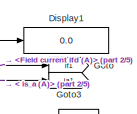
[diagram: root canvas - part 1/5, top center region]
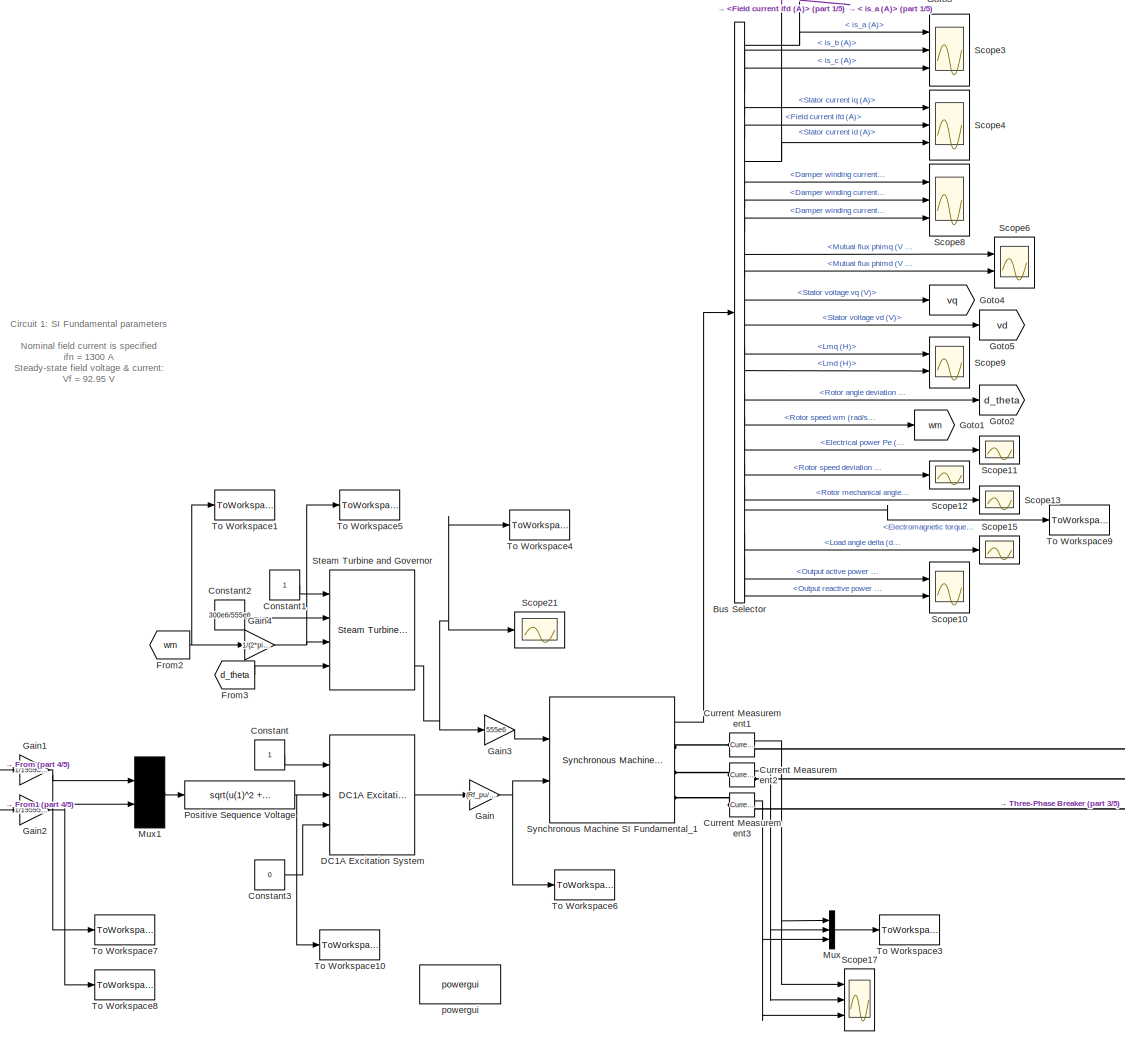
[diagram: root canvas - part 2/5, center side, full height]
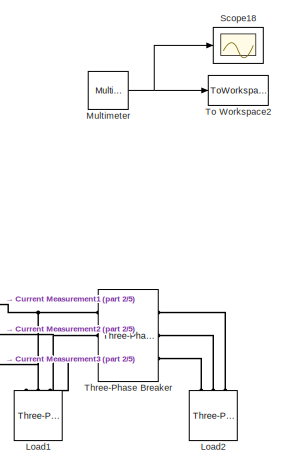
[diagram: root canvas - part 3/5, middle right region]
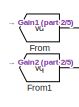
[diagram: root canvas - part 4/5, bottom left region]
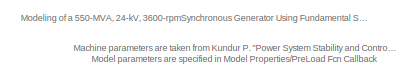
[diagram: root canvas - part 5/5, bottom center region]
MODEL slx_899bc6b0ccce
KIND model
CONFIG AbsTol = auto
CONFIG EnableMultiTasking = on
CONFIG FixedStep = 0.00005
CONFIG MaxStep = 200e-6
CONFIG MinStep = auto
CONFIG PreLoadFcn = % Machine parameters from Kundur Examples 3.1, 3.2,  8.1 (pages 91,102, 345)\n% "Power System Stability and Control"  McGraw-Hill  book, 1994\n% --------------------------------------------------------------------\n% Nominal parameters\nPn=  555e6;   % three-pahse nominal power (VA)\nVn=  24e3;    % nominal LL volatge (Vrms)\nfn=  60;      % nominal frequency (Hz)\nifn= 1300;    % nominal field current (...<+1654ch>
CONFIG RelTol = 1e-4
CONFIG SampleTimeConstraint = Unconstrained
CONFIG Solver = FixedStepAuto
CONFIG SolverName = FixedStepAuto
CONFIG StartTime = 0.0
CONFIG StopTime = 20
BLOCK [BusSelector] Bus Selector
  OutputSignals = Stator current. is_a (A),Stator current. is_b (A),Stator current. is_c (A),dq0 components.Stator current  iq (A),dq0 components.Stator current  id (A),dq0 components.Field current  ifd (A),dq0 components.Damper winding current  ikq1 (A),dq0 components.Damper winding current  ikq2 (A),dq0 components.Damper winding current  ikd (A),dq0 components.Mutual flux  phimq (V s),dq0 components.Mutual flux  ...<+472ch>
  Ports = [1, 24]
BLOCK [Constant] Constant
BLOCK [Constant] Constant1
BLOCK [Constant] Constant2
  Value = 300e6/555e6
BLOCK [Constant] Constant3
  Value = 0
BLOCK [Reference] Current Measurement1  REF=powerlib/Measurements/Current Measurement
  Ports = [0, 1, 0, 0, 0, 1, 1]
  SourceBlock = powerlib/Measurements/Current Measurement
  SourceType = Current Measurement
  UserDataPersistent = on
BLOCK [Reference] Current Measurement2  REF=powerlib/Measurements/Current Measurement
  Ports = [0, 1, 0, 0, 0, 1, 1]
  SourceBlock = powerlib/Measurements/Current Measurement
  SourceType = Current Measurement
  UserDataPersistent = on
BLOCK [Reference] Current Measurement3  REF=powerlib/Measurements/Current Measurement
  Ports = [0, 1, 0, 0, 0, 1, 1]
  SourceBlock = powerlib/Measurements/Current Measurement
  SourceType = Current Measurement
  UserDataPersistent = on
BLOCK [Reference] DC1A Excitation System  REF=sps_avr/DC1A
Excitation System
  Ports = [3, 1]
  SourceBlock = sps_avr/DC1A\nExcitation System
  SourceType = DC1A Excitation System
BLOCK [Display] Display1
  Decimation = 1
  Ports = [1]
BLOCK [From] From
  GotoTag = vd
BLOCK [From] From1
  GotoTag = vq
BLOCK [From] From2
  GotoTag = wm
BLOCK [From] From3
  GotoTag = d_theta
BLOCK [Gain] Gain
  Gain = (Rf_pu/Lmd_pu)*257198.07031934269
  OutDataTypeStr = Inherit: Inherit via internal rule
  ParamDataTypeStr = Inherit: Inherit via internal rule
  SaturateOnIntegerOverflow = off
BLOCK [Gain] Gain1
  Gain = 1/19595.917942265427
  OutDataTypeStr = Inherit: Inherit via internal rule
  ParamDataTypeStr = Inherit: Inherit via internal rule
  SaturateOnIntegerOverflow = off
BLOCK [Gain] Gain2
  Gain = 1/19595.917942265427
  OutDataTypeStr = Inherit: Inherit via internal rule
  ParamDataTypeStr = Inherit: Inherit via internal rule
  SaturateOnIntegerOverflow = off
BLOCK [Gain] Gain3
  Gain = 555e6
  OutDataTypeStr = Inherit: Inherit via internal rule
  ParamDataTypeStr = Inherit: Inherit via internal rule
  SaturateOnIntegerOverflow = off
BLOCK [Gain] Gain4
  Gain = 1/(2*pi*60)
  OutDataTypeStr = Inherit: Inherit via internal rule
  ParamDataTypeStr = Inherit: Inherit via internal rule
  SaturateOnIntegerOverflow = off
BLOCK [Goto] Goto
  GotoTag = If1
  TagVisibility = global
BLOCK [Goto] Goto1
  GotoTag = wm
BLOCK [Goto] Goto2
  GotoTag = d_theta
BLOCK [Goto] Goto3
  GotoTag = ia1
  TagVisibility = global
BLOCK [Goto] Goto4
  GotoTag = vq
BLOCK [Goto] Goto5
  GotoTag = vd
BLOCK [Reference] Load1  REF=powerlib/Elements/Three-Phase
Series RLC Load
  AttributesFormatString = \n
  Ports = [0, 0, 0, 0, 0, 3]
  SourceBlock = powerlib/Elements/Three-Phase\nSeries RLC Load
  SourceType = Three-Phase Series RLC Load
BLOCK [Reference] Load2  REF=powerlib/Elements/Three-Phase
Series RLC Load
  AttributesFormatString = \n
  Ports = [0, 0, 0, 0, 0, 3]
  SourceBlock = powerlib/Elements/Three-Phase\nSeries RLC Load
  SourceType = Three-Phase Series RLC Load
BLOCK [Reference] Multimeter  REF=powerlib/Measurements/Multimeter
  Ports = [0, 1]
  SourceBlock = powerlib/Measurements/Multimeter
  SourceType = MultimeterPSB
BLOCK [Mux] Mux
  DisplayOption = bar
  Inputs = 3
  Ports = [3, 1]
BLOCK [Mux] Mux1
  Inputs = 2
  Ports = [2, 1]
BLOCK [Fcn] Positive Sequence Voltage
  Expr = sqrt(u(1)^2 + u(2)^2)
BLOCK [Scope] Scope10
  NumInputPorts = 2
  Ports = [2]
  ScopeSpecificationString = Simulink.scopes.TimeScopeBlockCfg('CurrentConfiguration', extmgr.ConfigurationSet(extmgr.Configuration('Core','General UI',true),extmgr.Configuration('Core','Source UI',true),extmgr.Configuration('Sources','WiredSimulink',true,'DataLoggingVariableName','ScopeData8'),extmgr.Configuration('Visuals','Time Domain',true,'SerializedDisplays',{struct('MinYLimReal','-938864446.74953','MaxYLimReal','845534...<+2126ch>
BLOCK [Scope] Scope11
  NumInputPorts = 1
  Ports = [1]
  ScopeSpecificationString = Simulink.scopes.TimeScopeBlockCfg('CurrentConfiguration', extmgr.ConfigurationSet(extmgr.Configuration('Core','General UI',true),extmgr.Configuration('Core','Source UI',true),extmgr.Configuration('Sources','WiredSimulink',true,'DataLoggingVariableName','ScopeData9'),extmgr.Configuration('Visuals','Time Domain',true,'SerializedDisplays',{struct('MinYLimReal','554795.30383','MaxYLimReal','555665.063...<+2070ch>
BLOCK [Scope] Scope12
  NumInputPorts = 1
  Ports = [1]
  ScopeSpecificationString = Simulink.scopes.TimeScopeBlockCfg('CurrentConfiguration', extmgr.ConfigurationSet(extmgr.Configuration('Core','General UI',true),extmgr.Configuration('Core','Source UI',true),extmgr.Configuration('Sources','WiredSimulink',true,'DataLoggingVariableName','ScopeData10'),extmgr.Configuration('Visuals','Time Domain',true,'SerializedDisplays',{struct('MinYLimReal','-0.000000002','MaxYLimReal','0.0000000...<+2074ch>
BLOCK [Scope] Scope13
  NumInputPorts = 1
  Ports = [1]
  ScopeSpecificationString = Simulink.scopes.TimeScopeBlockCfg('CurrentConfiguration', extmgr.ConfigurationSet(extmgr.Configuration('Core','General UI',true),extmgr.Configuration('Core','Source UI',true),extmgr.Configuration('Sources','WiredSimulink',true,'DataLoggingVariableName','ScopeData11'),extmgr.Configuration('Visuals','Time Domain',true,'SerializedDisplays',{struct('MinYLimReal','-113.91898','MaxYLimReal','-47.70201',...<+2113ch>
BLOCK [Scope] Scope15
  NumInputPorts = 1
  Ports = [1]
  ScopeSpecificationString = Simulink.scopes.TimeScopeBlockCfg('CurrentConfiguration', extmgr.ConfigurationSet(extmgr.Configuration('Core','General UI',true),extmgr.Configuration('Core','Source UI',true),extmgr.Configuration('Sources','WiredSimulink',true,'DataLoggingVariableName','ScopeData13'),extmgr.Configuration('Visuals','Time Domain',true,'SerializedDisplays',{struct('MinYLimReal','-190.61532','MaxYLimReal','214.69266',...<+2060ch>
BLOCK [Scope] Scope17
  NumInputPorts = 3
  Ports = [3]
  ScopeSpecificationString = Simulink.scopes.TimeScopeBlockCfg('CurrentConfiguration', extmgr.ConfigurationSet(extmgr.Configuration('Core','General UI',true),extmgr.Configuration('Core','Source UI',true),extmgr.Configuration('Sources','WiredSimulink',true,'DataLoggingSaveFormat','StructureWithTime','DataLoggingDecimation','1','DataLoggingDecimateData',true,'DataLoggingVariableName','ScopeData2'),extmgr.Configuration('Visuals'...<+2027ch>
BLOCK [Scope] Scope18
  NumInputPorts = 1
  Ports = [1]
  ScopeSpecificationString = Simulink.scopes.TimeScopeBlockCfg('CurrentConfiguration', extmgr.ConfigurationSet(extmgr.Configuration('Core','General UI',true),extmgr.Configuration('Core','Source UI',true),extmgr.Configuration('Sources','WiredSimulink',true,'DataLoggingVariableName','ScopeData1'),extmgr.Configuration('Visuals','Time Domain',true,'SerializedDisplays',{struct('MinYLimReal','-24496.13978','MaxYLimReal','24496.1398...<+1459ch>
BLOCK [Scope] Scope21
  NumInputPorts = 1
  Ports = [1]
  ScopeSpecificationString = Simulink.scopes.TimeScopeBlockCfg('CurrentConfiguration', extmgr.ConfigurationSet(extmgr.Configuration('Core','General UI',true),extmgr.Configuration('Core','Source UI',true),extmgr.Configuration('Sources','WiredSimulink',true,'DataLoggingVariableName','ScopeData1'),extmgr.Configuration('Visuals','Time Domain',true,'SerializedDisplays',{struct('MinYLimReal','0.00082','MaxYLimReal','0.00215','YLabe...<+1385ch>
BLOCK [Scope] Scope3
  NumInputPorts = 3
  Ports = [3]
  ScopeSpecificationString = Simulink.scopes.TimeScopeBlockCfg('CurrentConfiguration', extmgr.ConfigurationSet(extmgr.Configuration('Core','General UI',true),extmgr.Configuration('Core','Source UI',true),extmgr.Configuration('Sources','WiredSimulink',true,'DataLoggingVariableName','ScopeData1'),extmgr.Configuration('Visuals','Time Domain',true,'SerializedDisplays',{struct('MinYLimReal','16.30961','MaxYLimReal','16.37906','YLa...<+1475ch>
BLOCK [Scope] Scope4
  NumInputPorts = 3
  Ports = [3]
  ScopeSpecificationString = Simulink.scopes.TimeScopeBlockCfg('CurrentConfiguration', extmgr.ConfigurationSet(extmgr.Configuration('Core','General UI',true),extmgr.Configuration('Core','Source UI',true),extmgr.Configuration('Sources','WiredSimulink',true,'DataLoggingVariableName','ScopeData2'),extmgr.Configuration('Visuals','Time Domain',true,'SerializedDisplays',{struct('MinYLimReal','-104503.54243','MaxYLimReal','107336.88...<+2852ch>
BLOCK [Scope] Scope6
  NumInputPorts = 2
  Ports = [2]
  ScopeSpecificationString = Simulink.scopes.TimeScopeBlockCfg('CurrentConfiguration', extmgr.ConfigurationSet(extmgr.Configuration('Core','General UI',true),extmgr.Configuration('Core','Source UI',true),extmgr.Configuration('Sources','WiredSimulink',true,'DataLoggingVariableName','ScopeData4'),extmgr.Configuration('Visuals','Time Domain',true,'SerializedDisplays',{struct('MinYLimReal','-32.79254','MaxYLimReal','25.98415','YL...<+2085ch>
BLOCK [Scope] Scope8
  NumInputPorts = 3
  Ports = [3]
  ScopeSpecificationString = Simulink.scopes.TimeScopeBlockCfg('CurrentConfiguration', extmgr.ConfigurationSet(extmgr.Configuration('Core','General UI',true),extmgr.Configuration('Core','Source UI',true),extmgr.Configuration('Sources','WiredSimulink',true,'DataLoggingVariableName','ScopeData6'),extmgr.Configuration('Visuals','Time Domain',true,'SerializedDisplays',{struct('MinYLimReal','-13184.59574','MaxYLimReal','16286.8917...<+2861ch>
BLOCK [Scope] Scope9
  NumInputPorts = 2
  Ports = [2]
  ScopeSpecificationString = Simulink.scopes.TimeScopeBlockCfg('CurrentConfiguration', extmgr.ConfigurationSet(extmgr.Configuration('Core','General UI',true),extmgr.Configuration('Core','Source UI',true),extmgr.Configuration('Sources','WiredSimulink',true,'DataLoggingVariableName','ScopeData7'),extmgr.Configuration('Visuals','Time Domain',true,'SerializedDisplays',{struct('MinYLimReal','0.00343','MaxYLimReal','0.00543','YLabe...<+2043ch>
BLOCK [Reference] Steam Turbine and Governor  REF=powerlib/Machines/Steam Turbine
and Governor
  Ports = [4, 4]
  SourceBlock = powerlib/Machines/Steam Turbine\nand Governor
  SourceType = Steam Turbine and Governor
BLOCK [Reference] Synchronous Machine SI Fundamental_1  REF=powerlib/Machines/Synchronous Machine
SI Fundamental
  Ports = [2, 1, 0, 0, 0, 0, 3]
  SourceBlock = powerlib/Machines/Synchronous Machine\nSI Fundamental
  SourceType = Synchronous Machine
BLOCK [Reference] Three-Phase Breaker  REF=powerlib/Elements/Three-Phase Breaker
  Ports = [0, 0, 0, 0, 0, 3, 3]
  SourceBlock = powerlib/Elements/Three-Phase Breaker
  SourceType = Three-Phase Breaker
BLOCK [ToWorkspace] To Workspace1
  MaxDataPoints = inf
  Ports = [1]
  SampleTime = -1
  Save2DSignal = 3-D array (concatenate along third dimension)
  VariableName = speed
BLOCK [ToWorkspace] To Workspace10
  MaxDataPoints = inf
  Ports = [1]
  SampleTime = -1
  Save2DSignal = 3-D array (concatenate along third dimension)
  VariableName = vt
BLOCK [ToWorkspace] To Workspace2
  FixptAsFi = on
  MaxDataPoints = inf
  Ports = [1]
  SampleTime = -1
  Save2DSignal = 3-D array (concatenate along third dimension)
  VariableName = voltages
BLOCK [ToWorkspace] To Workspace3
  FixptAsFi = on
  MaxDataPoints = inf
  Ports = [1]
  SampleTime = -1
  Save2DSignal = 3-D array (concatenate along third dimension)
  VariableName = currents
BLOCK [ToWorkspace] To Workspace4
  MaxDataPoints = inf
  Ports = [1]
  SampleTime = -1
  Save2DSignal = 3-D array (concatenate along third dimension)
  VariableName = Pm
BLOCK [ToWorkspace] To Workspace5
  MaxDataPoints = inf
  Ports = [1]
  SampleTime = -1
  Save2DSignal = 3-D array (concatenate along third dimension)
  VariableName = omega_pu
BLOCK [ToWorkspace] To Workspace6
  MaxDataPoints = inf
  Ports = [1]
  SampleTime = -1
  Save2DSignal = 3-D array (concatenate along third dimension)
  VariableName = vf
BLOCK [ToWorkspace] To Workspace7
  MaxDataPoints = inf
  Ports = [1]
  SampleTime = -1
  Save2DSignal = 3-D array (concatenate along third dimension)
  VariableName = vd
BLOCK [ToWorkspace] To Workspace8
  MaxDataPoints = inf
  Ports = [1]
  SampleTime = -1
  Save2DSignal = 3-D array (concatenate along third dimension)
  VariableName = vq
BLOCK [ToWorkspace] To Workspace9
  MaxDataPoints = inf
  Ports = [1]
  SampleTime = -1
  Save2DSignal = 3-D array (concatenate along third dimension)
  VariableName = Te
BLOCK [Reference] powergui  REF=powerlib/powergui
  Ports = []
  Priority = 1
  SourceBlock = powerlib/powergui
  SourceType = PSB option menu block
ANNOTATION (root): Circuit 1: SI Fundamental parameters Nominal field current is specified ifn = 1300 A Steady-state field voltage & current: Vf = 92.95 V If = 1300 A Transformation ratio : Ns/Nf = 0.07619
ANNOTATION (root): Machine parameters are taken from Kundur P. "Power System Stability and Control" McGraw-Hill book, 1994 Examples 3.1, 3.2 & 8.1 Model parameters are specified in Model Properties/PreLoad Fcn Callback
ANNOTATION (root): Modeling of a 550-MVA, 24-kV, 3600-rpmSynchronous Generator Using Fundamental SI & PU Parameters
NET Bus Selector:1 -> Goto3:1, Scope3:1
LINE Bus Selector:10 -> Scope6:1
LINE Bus Selector:11 -> Scope6:2
LINE Bus Selector:12 -> Goto4:1
LINE Bus Selector:13 -> Goto5:1
LINE Bus Selector:14 -> Scope9:1
LINE Bus Selector:15 -> Scope9:2
LINE Bus Selector:16 -> Goto2:1
LINE Bus Selector:17 -> Goto1:1
LINE Bus Selector:18 -> Scope11:1
LINE Bus Selector:19 -> Scope12:1
LINE Bus Selector:2 -> Scope3:2
LINE Bus Selector:20 -> Scope13:1
LINE Bus Selector:21 -> To Workspace9:1
LINE Bus Selector:22 -> Scope15:1
LINE Bus Selector:23 -> Scope10:1
LINE Bus Selector:24 -> Scope10:2
LINE Bus Selector:3 -> Scope3:3
LINE Bus Selector:4 -> Scope4:1
LINE Bus Selector:5 -> Scope4:2
NET Bus Selector:6 -> Display1:1, Goto:1, Scope4:3
LINE Bus Selector:7 -> Scope8:1
LINE Bus Selector:8 -> Scope8:2
LINE Bus Selector:9 -> Scope8:3
LINE Constant1:1 -> Steam Turbine and Governor:1
LINE Constant2:1 -> Steam Turbine and Governor:2
LINE Constant3:1 -> DC1A Excitation System:3
LINE Constant:1 -> DC1A Excitation System:1
NET Current Measurement1:1 -> Mux:1, Scope17:1
NET Current Measurement2:1 -> Mux:2, Scope17:2
NET Current Measurement3:1 -> Mux:3, Scope17:3
LINE DC1A Excitation System:1 -> Gain:1
LINE From1:1 -> Gain2:1
NET From2:1 -> Gain4:1, To Workspace1:1
LINE From3:1 -> Steam Turbine and Governor:4
LINE From:1 -> Gain1:1
NET Gain1:1 -> Mux1:1, To Workspace7:1
NET Gain2:1 -> Mux1:2, To Workspace8:1
LINE Gain3:1 -> Synchronous Machine SI Fundamental_1:1
NET Gain4:1 -> Steam Turbine and Governor:3, To Workspace5:1
NET Gain:1 -> Synchronous Machine SI Fundamental_1:2, To Workspace6:1
NET Multimeter:1 -> Scope18:1, To Workspace2:1
LINE Mux1:1 -> Positive Sequence Voltage:1
LINE Mux:1 -> To Workspace3:1
NET Positive Sequence Voltage:1 -> DC1A Excitation System:2, To Workspace10:1
NET Steam Turbine and Governor:4 -> Gain3:1, Scope21:1, To Workspace4:1
LINE Synchronous Machine SI Fundamental_1:1 -> Bus Selector:1
PLINE Current Measurement1:LConn1 -- Synchronous Machine SI Fundamental_1:RConn1
PNET net1: Current Measurement1:RConn1 -- Load1:LConn1 -- Three-Phase Breaker:LConn1
PLINE Current Measurement2:LConn1 -- Synchronous Machine SI Fundamental_1:RConn2
PNET net2: Current Measurement2:RConn1 -- Load1:LConn2 -- Three-Phase Breaker:LConn2
PLINE Current Measurement3:LConn1 -- Synchronous Machine SI Fundamental_1:RConn3
PNET net3: Current Measurement3:RConn1 -- Load1:LConn3 -- Three-Phase Breaker:LConn3
PLINE Load2:LConn1 -- Three-Phase Breaker:RConn3
PLINE Load2:LConn2 -- Three-Phase Breaker:RConn2
PLINE Load2:LConn3 -- Three-Phase Breaker:RConn1
note: NET lines group one-source signal fan-out (src -> all destinations, sorted); 1:1 wires keep LINE; PNET lines group multi-terminal physical nets as a canonical sorted terminal list (undirected conserving connections); 2-terminal nets keep the pairwise PLINE form
